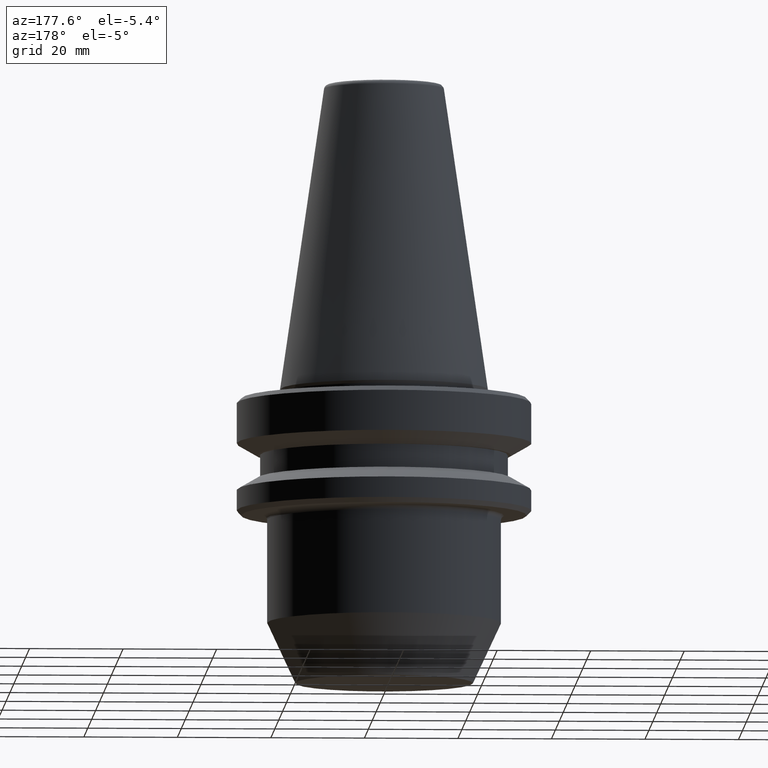
[diagram: clean part render]
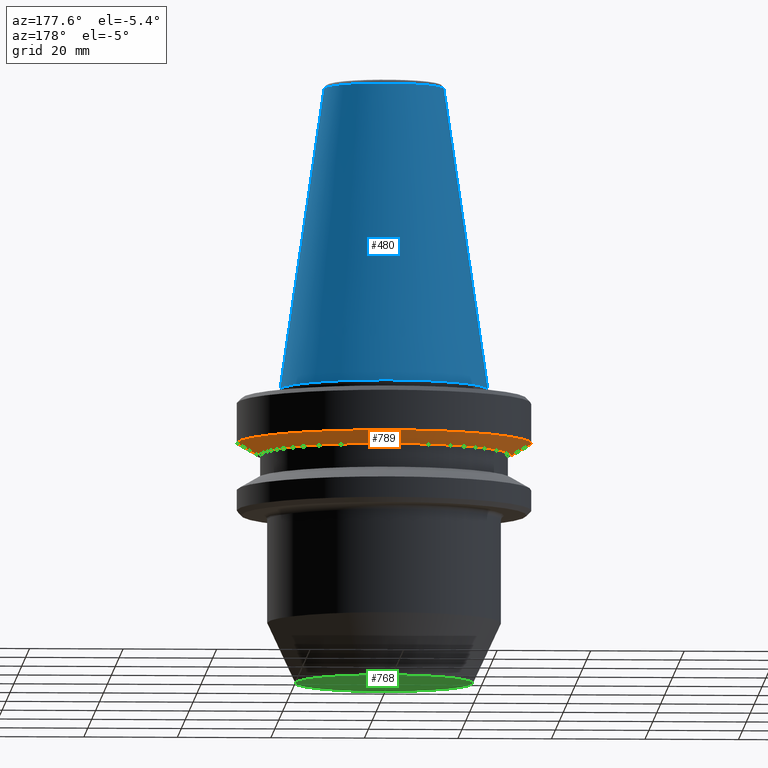
[diagram: same view with three faces highlighted in distinct colors, each labeled with its STEP entity id]
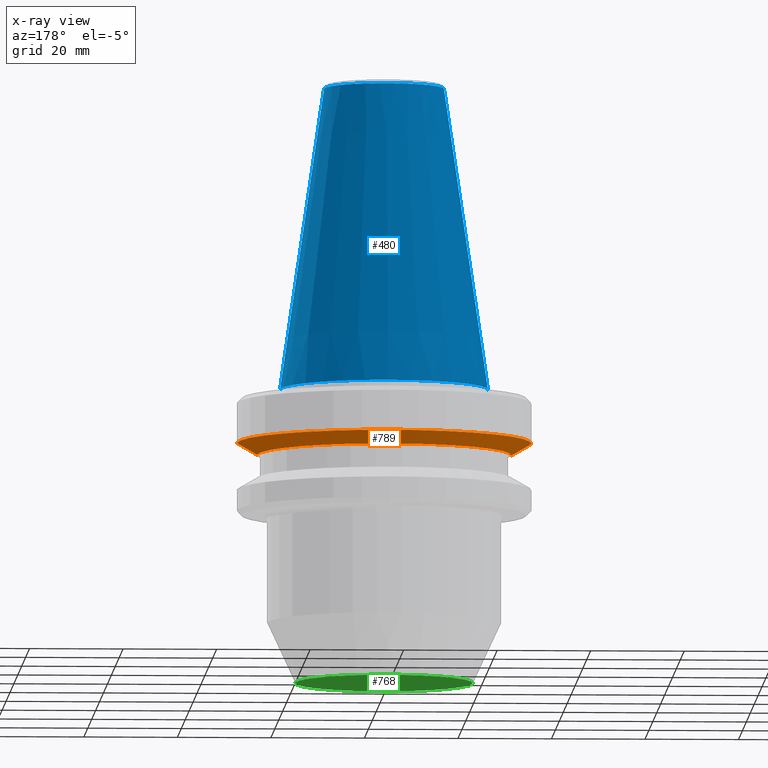
[diagram: x-ray of the same camera — body ghosted, the three highlighted faces saturated]
A machine part, auxiliary view with three faces highlighted in distinct colors.
The next image is the same camera in x-ray (body ghosted, the three faces saturated) — at least one of them is partly hidden behind the body in this view.
Their STEP definitions:

[orange] entity #789 — the highlighted conical surface has half-angle 60 deg.
#87 = CARTESIAN_POINT ( 'NONE',  ( 31.49999999999986100, 0.0000000000000000000, -10.91114478202370800 ) ) ;
#90 = CARTESIAN_POINT ( 'NONE',  ( 0.0000000000000000000, 0.0000000000000000000, -10.91114478202370800 ) ) ;
#110 = AXIS2_PLACEMENT_3D ( 'NONE', #812, #446, #896 ) ;
#111 = LINE ( 'NONE', #187, #140 ) ;
#119 = DIRECTION ( 'NONE',  ( -0.0000000000000000000, -0.0000000000000000000, 1.000000000000000000 ) ) ;
#140 = VECTOR ( 'NONE', #737, 1000.000000000000100 ) ;
#156 = VECTOR ( 'NONE', #694, 1000.000000000000100 ) ;
#187 = CARTESIAN_POINT ( 'NONE',  ( -27.16962701892278200, 3.327319676275122900E-015, -13.41128678834002700 ) ) ;
#195 = ORIENTED_EDGE ( 'NONE', *, *, #517, .F. ) ;
#200 = VERTEX_POINT ( 'NONE', #281 ) ;
#226 = VERTEX_POINT ( 'NONE', #741 ) ;
#262 = VERTEX_POINT ( 'NONE', #87 ) ;
#263 = ORIENTED_EDGE ( 'NONE', *, *, #798, .T. ) ;
#266 = DIRECTION ( 'NONE',  ( 1.000000000000000000, 0.0000000000000000000, 0.0000000000000000000 ) ) ;
#281 = CARTESIAN_POINT ( 'NONE',  ( -31.49999999999986100, 3.857637417314145300E-015, -10.91114478202370800 ) ) ;
#282 = AXIS2_PLACEMENT_3D ( 'NONE', #90, #119, #795 ) ;
#285 = DIRECTION ( 'NONE',  ( -0.0000000000000000000, -0.0000000000000000000, 1.000000000000000000 ) ) ;
#296 = AXIS2_PLACEMENT_3D ( 'NONE', #747, #285, #266 ) ;
#330 = CIRCLE ( 'NONE', #282, 31.49999999999986100 ) ;
#359 = CONICAL_SURFACE ( 'NONE', #110, 27.16962701892278200, 1.047197551196600300 ) ;
#361 = EDGE_CURVE ( 'NONE', #226, #908, #986, .T. ) ;
#370 = EDGE_CURVE ( 'NONE', #262, #200, #330, .T. ) ;
#397 = EDGE_LOOP ( 'NONE', ( #640, #263, #876, #195 ) ) ;
#446 = DIRECTION ( 'NONE',  ( -0.0000000000000000000, -0.0000000000000000000, 1.000000000000000000 ) ) ;
#476 = LINE ( 'NONE', #972, #156 ) ;
#517 = EDGE_CURVE ( 'NONE', #226, #262, #476, .T. ) ;
#640 = ORIENTED_EDGE ( 'NONE', *, *, #361, .T. ) ;
#694 = DIRECTION ( 'NONE',  ( 0.8660254037844398200, 0.0000000000000000000, 0.4999999999999977200 ) ) ;
#737 = DIRECTION ( 'NONE',  ( -0.8660254037844398200, 1.060575238724908400E-016, 0.4999999999999977200 ) ) ;
#741 = CARTESIAN_POINT ( 'NONE',  ( 27.16962701892278200, 0.0000000000000000000, -13.41128678834002700 ) ) ;
#747 = CARTESIAN_POINT ( 'NONE',  ( 0.0000000000000000000, 0.0000000000000000000, -13.41128678834002700 ) ) ;
#789 = ADVANCED_FACE ( 'NONE', ( #805 ), #359, .T. ) ;
#795 = DIRECTION ( 'NONE',  ( 1.000000000000000000, 0.0000000000000000000, 0.0000000000000000000 ) ) ;
#798 = EDGE_CURVE ( 'NONE', #908, #200, #111, .T. ) ;
#805 = FACE_OUTER_BOUND ( 'NONE', #397, .T. ) ;
#812 = CARTESIAN_POINT ( 'NONE',  ( 0.0000000000000000000, 0.0000000000000000000, -13.41128678834002700 ) ) ;
#876 = ORIENTED_EDGE ( 'NONE', *, *, #370, .F. ) ;
#896 = DIRECTION ( 'NONE',  ( 1.000000000000000000, 0.0000000000000000000, 0.0000000000000000000 ) ) ;
#908 = VERTEX_POINT ( 'NONE', #919 ) ;
#919 = CARTESIAN_POINT ( 'NONE',  ( -27.16962701892278200, 3.592478546794634700E-015, -13.41128678834002700 ) ) ;
#972 = CARTESIAN_POINT ( 'NONE',  ( 27.16962701892278200, 0.0000000000000000000, -13.41128678834002700 ) ) ;
#986 = CIRCLE ( 'NONE', #296, 27.16962701892278200 ) ;

[blue] entity #480 — the highlighted conical surface has half-angle 8.297 deg.
#44 = FACE_OUTER_BOUND ( 'NONE', #641, .T. ) ;
#55 = DIRECTION ( 'NONE',  ( 1.000000000000000000, 0.0000000000000000000, 0.0000000000000000000 ) ) ;
#72 = EDGE_CURVE ( 'NONE', #336, #362, #96, .T. ) ;
#96 = LINE ( 'NONE', #442, #512 ) ;
#138 = DIRECTION ( 'NONE',  ( -0.0000000000000000000, -0.0000000000000000000, 1.000000000000000000 ) ) ;
#165 = CARTESIAN_POINT ( 'NONE',  ( 12.81220206925713600, 0.0000000000000000000, 65.23302140054848100 ) ) ;
#170 = CARTESIAN_POINT ( 'NONE',  ( -12.81220206925713600, 1.569042225414484800E-015, 65.23302140054848100 ) ) ;
#186 = AXIS2_PLACEMENT_3D ( 'NONE', #1015, #851, #653 ) ;
#219 = CARTESIAN_POINT ( 'NONE',  ( 22.22499999999971700, 0.0000000000000000000, 0.6887132116596417200 ) ) ;
#221 = CIRCLE ( 'NONE', #186, 12.81220206925715000 ) ;
#233 = AXIS2_PLACEMENT_3D ( 'NONE', #261, #1002, #995 ) ;
#234 = DIRECTION ( 'NONE',  ( 0.1443081888881784800, 1.767265616126594100E-017, -0.9895327920891828800 ) ) ;
#237 = AXIS2_PLACEMENT_3D ( 'NONE', #399, #138, #55 ) ;
#261 = CARTESIAN_POINT ( 'NONE',  ( 0.0000000000000000000, 0.0000000000000000000, 0.6887132116596417200 ) ) ;
#332 = DIRECTION ( 'NONE',  ( -0.1443081888881784800, 0.0000000000000000000, -0.9895327920891828800 ) ) ;
#336 = VERTEX_POINT ( 'NONE', #170 ) ;
#362 = VERTEX_POINT ( 'NONE', #500 ) ;
#385 = VERTEX_POINT ( 'NONE', #219 ) ;
#387 = EDGE_CURVE ( 'NONE', #445, #385, #691, .T. ) ;
#399 = CARTESIAN_POINT ( 'NONE',  ( 0.0000000000000000000, 0.0000000000000000000, 0.6887132116596417200 ) ) ;
#442 = CARTESIAN_POINT ( 'NONE',  ( -22.22499999999971700, 0.0000000000000000000, 0.6887132116596417200 ) ) ;
#445 = VERTEX_POINT ( 'NONE', #165 ) ;
#477 = ORIENTED_EDGE ( 'NONE', *, *, #513, .F. ) ;
#480 = ADVANCED_FACE ( 'NONE', ( #44 ), #790, .T. ) ;
#492 = EDGE_CURVE ( 'NONE', #385, #362, #997, .T. ) ;
#498 = VECTOR ( 'NONE', #234, 999.9999999999998900 ) ;
#500 = CARTESIAN_POINT ( 'NONE',  ( -22.22499999999971700, 2.721777511104957700E-015, 0.6887132116596417200 ) ) ;
#512 = VECTOR ( 'NONE', #332, 999.9999999999998900 ) ;
#513 = EDGE_CURVE ( 'NONE', #445, #336, #221, .T. ) ;
#582 = ORIENTED_EDGE ( 'NONE', *, *, #492, .T. ) ;
#641 = EDGE_LOOP ( 'NONE', ( #477, #846, #582, #975 ) ) ;
#653 = DIRECTION ( 'NONE',  ( 1.000000000000000000, 0.0000000000000000000, 0.0000000000000000000 ) ) ;
#691 = LINE ( 'NONE', #707, #498 ) ;
#707 = CARTESIAN_POINT ( 'NONE',  ( 22.22499999999971700, 2.721777511104957700E-015, 0.6887132116596417200 ) ) ;
#790 = CONICAL_SURFACE ( 'NONE', #233, 22.22499999999971700, 0.1448138077623186700 ) ;
#846 = ORIENTED_EDGE ( 'NONE', *, *, #387, .T. ) ;
#851 = DIRECTION ( 'NONE',  ( -0.0000000000000000000, -0.0000000000000000000, 1.000000000000000000 ) ) ;
#975 = ORIENTED_EDGE ( 'NONE', *, *, #72, .F. ) ;
#995 = DIRECTION ( 'NONE',  ( -1.000000000000000000, 0.0000000000000000000, 0.0000000000000000000 ) ) ;
#997 = CIRCLE ( 'NONE', #237, 22.22499999999971700 ) ;
#1002 = DIRECTION ( 'NONE',  ( 0.0000000000000000000, 0.0000000000000000000, -1.000000000000000000 ) ) ;
#1015 = CARTESIAN_POINT ( 'NONE',  ( 0.0000000000000000000, 0.0000000000000000000, 65.23302140054848100 ) ) ;

[green] entity #768 — the highlighted planar face has unit normal (0, -0, 1).
#33 = EDGE_LOOP ( 'NONE', ( #695, #470 ) ) ;
#93 = CIRCLE ( 'NONE', #164, 19.00000000000000000 ) ;
#115 = AXIS2_PLACEMENT_3D ( 'NONE', #894, #444, #965 ) ;
#149 = CARTESIAN_POINT ( 'NONE',  ( 19.00000000000000000, 0.0000000000000000000, -62.31128678834036100 ) ) ;
#152 = AXIS2_PLACEMENT_3D ( 'NONE', #425, #882, #877 ) ;
#164 = AXIS2_PLACEMENT_3D ( 'NONE', #1014, #782, #235 ) ;
#174 = FACE_OUTER_BOUND ( 'NONE', #33, .T. ) ;
#235 = DIRECTION ( 'NONE',  ( 1.000000000000000000, 0.0000000000000000000, 0.0000000000000000000 ) ) ;
#354 = VERTEX_POINT ( 'NONE', #149 ) ;
#425 = CARTESIAN_POINT ( 'NONE',  ( 0.0000000000000000000, 0.0000000000000000000, -62.31128678834036100 ) ) ;
#444 = DIRECTION ( 'NONE',  ( 0.0000000000000000000, -0.0000000000000000000, 1.000000000000000000 ) ) ;
#470 = ORIENTED_EDGE ( 'NONE', *, *, #639, .F. ) ;
#509 = CIRCLE ( 'NONE', #152, 19.00000000000000000 ) ;
#575 = EDGE_CURVE ( 'NONE', #354, #809, #93, .T. ) ;
#592 = PLANE ( 'NONE',  #115 ) ;
#639 = EDGE_CURVE ( 'NONE', #809, #354, #509, .T. ) ;
#695 = ORIENTED_EDGE ( 'NONE', *, *, #575, .F. ) ;
#768 = ADVANCED_FACE ( 'NONE', ( #174 ), #592, .F. ) ;
#782 = DIRECTION ( 'NONE',  ( -0.0000000000000000000, -0.0000000000000000000, 1.000000000000000000 ) ) ;
#809 = VERTEX_POINT ( 'NONE', #903 ) ;
#877 = DIRECTION ( 'NONE',  ( 1.000000000000000000, 0.0000000000000000000, 0.0000000000000000000 ) ) ;
#882 = DIRECTION ( 'NONE',  ( -0.0000000000000000000, -0.0000000000000000000, 1.000000000000000000 ) ) ;
#894 = CARTESIAN_POINT ( 'NONE',  ( 0.0000000000000000000, 19.00000000000000000, -62.31128678834037500 ) ) ;
#903 = CARTESIAN_POINT ( 'NONE',  ( -19.00000000000000000, 2.694222958124177200E-015, -62.31128678834036100 ) ) ;
#965 = DIRECTION ( 'NONE',  ( 1.000000000000000000, 0.0000000000000000000, 0.0000000000000000000 ) ) ;
#1014 = CARTESIAN_POINT ( 'NONE',  ( 0.0000000000000000000, 0.0000000000000000000, -62.31128678834036100 ) ) ;